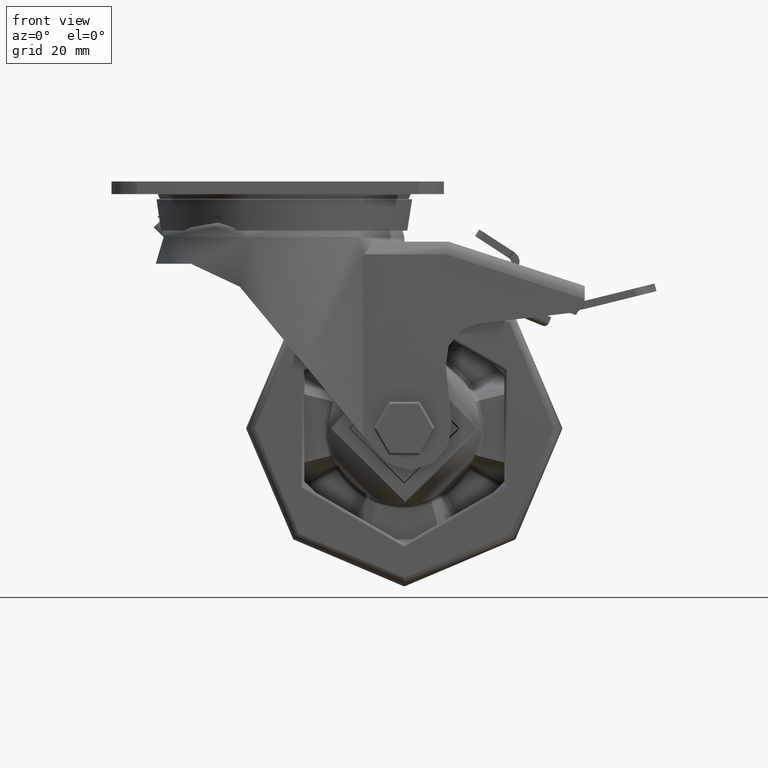
[diagram: clean part render]
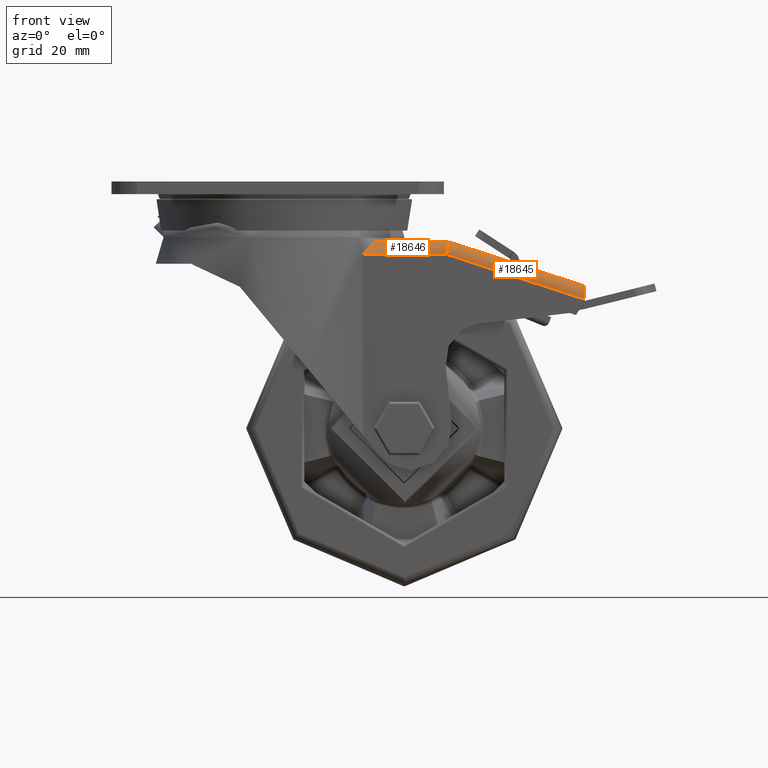
[diagram: same view with one multi-face feature highlighted, each face labeled with its STEP entity id]
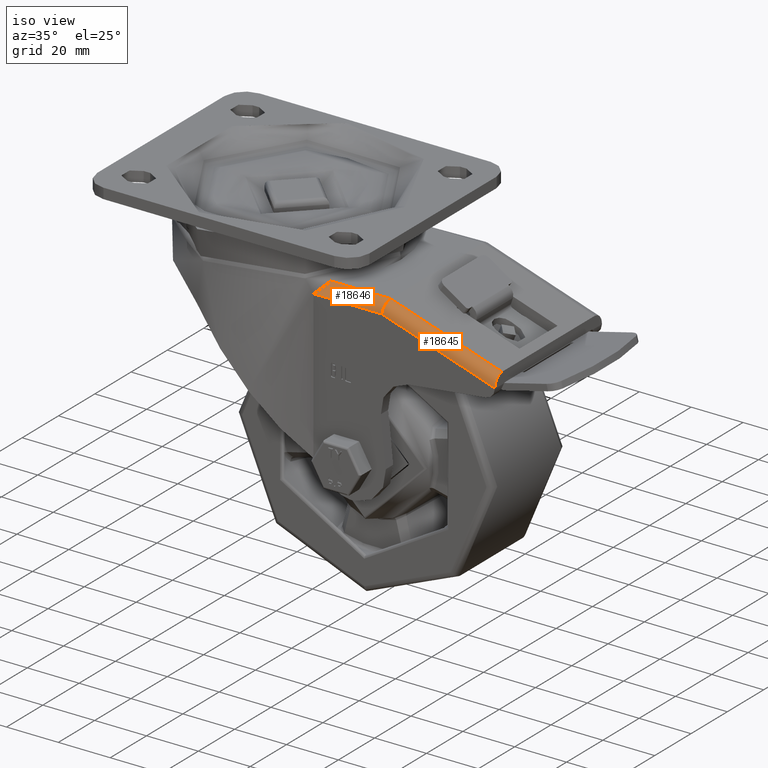
[diagram: same view with one multi-face feature highlighted, each face labeled with its STEP entity id]
A machine part, front view. The highlighted faces form ONE feature: a constant-radius fillet chain: 2 tangent blend faces with common blend radius 4 mm. The faces share edges in the B-rep.
A second angle (iso view) of the same feature is appended — it is thin or edge-on in the first view.
Their STEP definitions:
[1] entity #18645 (Cylinder):
#2017=ELLIPSE('',#20245,4.05005260957833,4.);
#2018=ELLIPSE('',#20246,4.20666755519814,4.);
#2296=FACE_OUTER_BOUND('',#3451,.T.);
#3451=EDGE_LOOP('',(#13609,#13610,#13611,#13612));
#4866=LINE('',#27798,#6155);
#4867=LINE('',#27801,#6156);
#6155=VECTOR('',#22760,1000.);
#6156=VECTOR('',#22763,1000.);
#8299=VERTEX_POINT('',#27794);
#8300=VERTEX_POINT('',#27795);
#8301=VERTEX_POINT('',#27797);
#8302=VERTEX_POINT('',#27799);
#10287=EDGE_CURVE('',#8299,#8300,#2017,.T.);
#10288=EDGE_CURVE('',#8299,#8301,#4866,.T.);
#10289=EDGE_CURVE('',#8301,#8302,#2018,.T.);
#10290=EDGE_CURVE('',#8302,#8300,#4867,.T.);
#13609=ORIENTED_EDGE('',*,*,#10287,.F.);
#13610=ORIENTED_EDGE('',*,*,#10288,.T.);
#13611=ORIENTED_EDGE('',*,*,#10289,.T.);
#13612=ORIENTED_EDGE('',*,*,#10290,.T.);
#18266=CYLINDRICAL_SURFACE('',#20244,4.);
#18645=ADVANCED_FACE('',(#2296),#18266,.T.);
#20244=AXIS2_PLACEMENT_3D('',#27793,#22756,#22757);
#20245=AXIS2_PLACEMENT_3D('',#27796,#22758,#22759);
#20246=AXIS2_PLACEMENT_3D('',#27800,#22761,#22762);
#22756=DIRECTION('center_axis',(0.95087143148672,-2.64697796016969E-17,
-0.309586047460792));
#22757=DIRECTION('ref_axis',(0.218910393520267,-0.707106781186547,0.67236763724082));
#22758=DIRECTION('center_axis',(-0.987641491505577,0.,0.156729972425951));
#22759=DIRECTION('ref_axis',(-0.156729972425951,0.,-0.987641491505577));
#22760=DIRECTION('',(0.95087143148672,0.,-0.309586047460792));
#22761=DIRECTION('center_axis',(-1.,0.,0.));
#22762=DIRECTION('ref_axis',(0.,6.18562123063382E-16,1.));
#22763=DIRECTION('',(-0.95087143148672,0.,0.309586047460792));
#27793=CARTESIAN_POINT('Origin',(36.3028538541666,-25.5,-17.4448060193454));
#27794=CARTESIAN_POINT('',(53.3652353661771,-29.5,-23.));
#27795=CARTESIAN_POINT('',(54.,-25.5,-19.));
#27796=CARTESIAN_POINT('Origin',(53.3652353661771,-25.5,-23.));
#27797=CARTESIAN_POINT('',(97.,-29.5,-37.2066675551982));
#27798=CARTESIAN_POINT('',(36.3028538541666,-29.5,-17.4448060193454));
#27799=CARTESIAN_POINT('',(97.,-25.5,-33.));
#27800=CARTESIAN_POINT('Origin',(97.,-25.5,-37.2066675551982));
#27801=CARTESIAN_POINT('',(37.5411980440098,-25.5,-13.6413202933985));
[2] entity #18646 (Cylinder):
#617=B_SPLINE_CURVE_WITH_KNOTS('',3,(#27745,#27746,#27747,#27748,#27749,
#27750,#27751,#27752,#27753,#27754,#27755,#27756),.UNSPECIFIED.,.F.,.F.,
(4,2,2,2,2,4),(0.,0.0756402686187028,0.151280537237406,0.302561074474811,
0.510994322381902,0.719427570288993),.UNSPECIFIED.);
#2017=ELLIPSE('',#20245,4.05005260957833,4.);
#2297=FACE_OUTER_BOUND('',#3452,.T.);
#3452=EDGE_LOOP('',(#13613,#13614,#13615,#13616));
#4868=LINE('',#27803,#6157);
#4869=LINE('',#27804,#6158);
#6157=VECTOR('',#22766,1000.);
#6158=VECTOR('',#22767,1000.);
#8278=VERTEX_POINT('',#27690);
#8288=VERTEX_POINT('',#27743);
#8299=VERTEX_POINT('',#27794);
#8300=VERTEX_POINT('',#27795);
#10276=EDGE_CURVE('',#8278,#8288,#617,.F.);
#10287=EDGE_CURVE('',#8299,#8300,#2017,.T.);
#10291=EDGE_CURVE('',#8288,#8299,#4868,.T.);
#10292=EDGE_CURVE('',#8300,#8278,#4869,.T.);
#13613=ORIENTED_EDGE('',*,*,#10276,.T.);
#13614=ORIENTED_EDGE('',*,*,#10291,.T.);
#13615=ORIENTED_EDGE('',*,*,#10287,.T.);
#13616=ORIENTED_EDGE('',*,*,#10292,.T.);
#18267=CYLINDRICAL_SURFACE('',#20247,4.);
#18646=ADVANCED_FACE('',(#2297),#18267,.T.);
#20245=AXIS2_PLACEMENT_3D('',#27796,#22758,#22759);
#20247=AXIS2_PLACEMENT_3D('',#27802,#22764,#22765);
#22758=DIRECTION('center_axis',(-0.987641491505577,0.,0.156729972425951));
#22759=DIRECTION('ref_axis',(-0.156729972425951,0.,-0.987641491505577));
#22764=DIRECTION('center_axis',(1.,0.,-8.16340459283203E-16));
#22765=DIRECTION('ref_axis',(5.77239874516094E-16,-0.707106781186547,0.707106781186548));
#22766=DIRECTION('',(1.,0.,-8.16340459283203E-16));
#22767=DIRECTION('',(-1.,0.,8.16340459283203E-16));
#27690=CARTESIAN_POINT('',(30.81801421247,-25.5,-19.));
#27743=CARTESIAN_POINT('',(27.0138853184802,-29.5,-23.));
#27745=CARTESIAN_POINT('Ctrl Pts',(27.0138853184802,-29.5,-23.));
#27746=CARTESIAN_POINT('Ctrl Pts',(27.0138853184802,-29.5,-22.747865771271));
#27747=CARTESIAN_POINT('Ctrl Pts',(27.0403975119848,-29.4757849543869,-22.492752325304));
#27748=CARTESIAN_POINT('Ctrl Pts',(27.1444021805916,-29.3800344883443,-21.9952619329618));
#27749=CARTESIAN_POINT('Ctrl Pts',(27.2218028000451,-29.3085495989748,-21.7528560637527));
#27750=CARTESIAN_POINT('Ctrl Pts',(27.512743233664,-29.0365195855324,-21.0674619178447));
#27751=CARTESIAN_POINT('Ctrl Pts',(27.7870275442741,-28.7756309567547,-20.6664566269662));
#27752=CARTESIAN_POINT('Ctrl Pts',(28.4557914143384,-28.1169657300425,-19.9203827723223));
#27753=CARTESIAN_POINT('Ctrl Pts',(28.922841122543,-27.6400106055534,-19.5730329007997));
#27754=CARTESIAN_POINT('Ctrl Pts',(29.8825558142731,-26.5995071937736,-19.1122200476719));
#27755=CARTESIAN_POINT('Ctrl Pts',(30.3750935606674,-26.0352915663627,-19.));
#27756=CARTESIAN_POINT('Ctrl Pts',(30.81801421247,-25.5,-19.));
#27794=CARTESIAN_POINT('',(53.3652353661771,-29.5,-23.));
#27795=CARTESIAN_POINT('',(54.,-25.5,-19.));
#27796=CARTESIAN_POINT('Origin',(53.3652353661771,-25.5,-23.));
#27802=CARTESIAN_POINT('Origin',(22.875,-25.5,-23.));
#27803=CARTESIAN_POINT('',(22.875,-29.5,-23.));
#27804=CARTESIAN_POINT('',(22.875,-25.5,-19.));